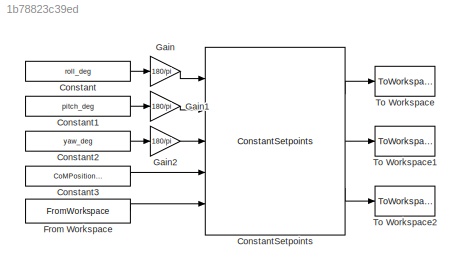
MODEL slx_1b78823c39ed
KIND model
CONFIG AbsTol = auto
CONFIG EnableMultiTasking = off
CONFIG FixedStep = Ts
CONFIG MaxStep = auto
CONFIG MinStep = auto
CONFIG RelTol = 1e-3
CONFIG SampleTimeConstraint = Unconstrained
CONFIG Solver = FixedStepAuto
CONFIG SolverName = FixedStepAuto
CONFIG StartTime = 0.0
CONFIG StopTime = Tf
BLOCK [Constant] Constant
  Value = roll_deg
BLOCK [Constant] Constant1
  Value = pitch_deg
BLOCK [Constant] Constant2
  Value = yaw_deg
BLOCK [Constant] Constant3
  Value = CoMPositionVec_cm
BLOCK [Reference] ConstantSetpoints  REF=constantSetpoints_cl/ConstantSetpoints
  Ports = [5, 3]
  SourceBlock = constantSetpoints_cl/ConstantSetpoints
  SourceType = SubSystem
BLOCK [FromWorkspace] From Workspace
  SampleTime = 0
  VariableName = faultStatus
  ZeroCross = on
BLOCK [Gain] Gain
  Gain = 180/pi
  OutDataTypeStr = Inherit: Inherit via internal rule
  ParamDataTypeStr = Inherit: Inherit via internal rule
  SaturateOnIntegerOverflow = off
BLOCK [Gain] Gain1
  Gain = 180/pi
  OutDataTypeStr = Inherit: Inherit via internal rule
  ParamDataTypeStr = Inherit: Inherit via internal rule
  SaturateOnIntegerOverflow = off
BLOCK [Gain] Gain2
  Gain = 180/pi
  OutDataTypeStr = Inherit: Inherit via internal rule
  ParamDataTypeStr = Inherit: Inherit via internal rule
  SaturateOnIntegerOverflow = off
BLOCK [ToWorkspace] To Workspace
  FixptAsFi = on
  MaxDataPoints = inf
  Ports = [1]
  SampleTime = -1
  Save2DSignal = 3-D array (concatenate along third dimension)
  SaveFormat = Timeseries
  VariableName = mtr1
BLOCK [ToWorkspace] To Workspace1
  FixptAsFi = on
  MaxDataPoints = inf
  Ports = [1]
  SampleTime = -1
  Save2DSignal = 3-D array (concatenate along third dimension)
  SaveFormat = Timeseries
  VariableName = mtr2
BLOCK [ToWorkspace] To Workspace2
  FixptAsFi = on
  MaxDataPoints = inf
  Ports = [1]
  SampleTime = -1
  Save2DSignal = 3-D array (concatenate along third dimension)
  SaveFormat = Timeseries
  VariableName = mtr3
LINE Constant1:1 -> Gain1:1
LINE Constant2:1 -> Gain2:1
LINE Constant3:1 -> ConstantSetpoints:4
LINE Constant:1 -> Gain:1
LINE ConstantSetpoints:1 -> To Workspace:1
LINE ConstantSetpoints:2 -> To Workspace1:1
LINE ConstantSetpoints:3 -> To Workspace2:1
LINE From Workspace:1 -> ConstantSetpoints:5
LINE Gain1:1 -> ConstantSetpoints:2
LINE Gain2:1 -> ConstantSetpoints:3
LINE Gain:1 -> ConstantSetpoints:1
